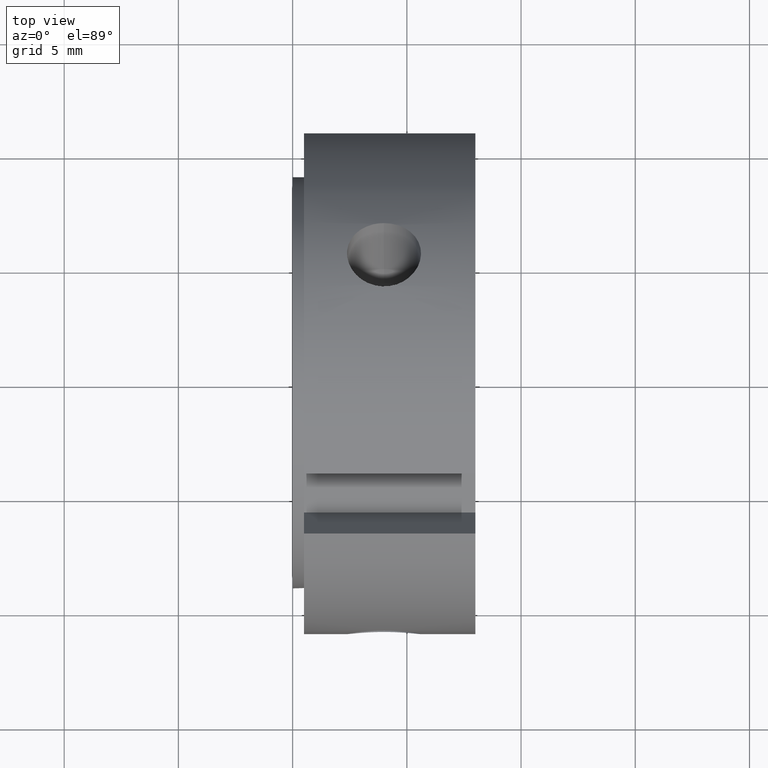
[diagram: clean part render]
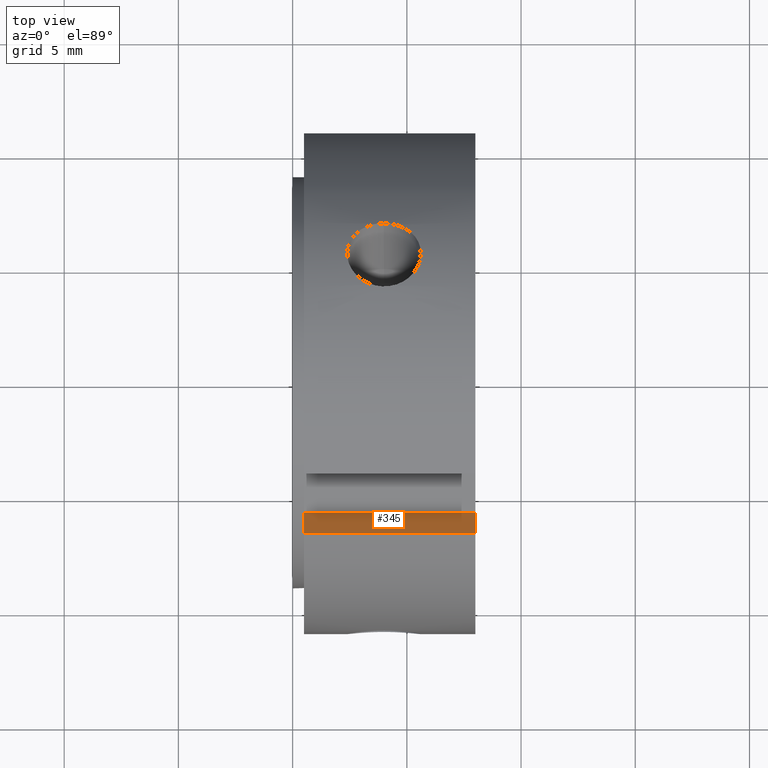
[diagram: same view with one face highlighted and labeled with its STEP entity id]
A machine part, top view. The second image highlights one B-rep face of the part: STEP entity #345.
In plain terms, the highlighted planar face has unit normal (0, -0.866, -0.5).
Its self-contained STEP definition (entity closure, byte-faithful):
#306=CARTESIAN_POINT('',(7.999999999999996,-6.799038105676656,8.776279441628827));
#307=DIRECTION('',(0.0,-0.866025403784439,-0.500000000000000));
#308=DIRECTION('',(1.0,0.0,0.0));
#309=AXIS2_PLACEMENT_3D('',#306,#307,#308);
#310=PLANE('',#309);
#311=CARTESIAN_POINT('',(0.499999999999998,-6.747661785102497,8.687293044088436));
#312=VERTEX_POINT('',#311);
#313=CARTESIAN_POINT('',(0.499999999999998,-5.799038105676656,7.044228634059949));
#314=VERTEX_POINT('',#313);
#315=CARTESIAN_POINT('',(0.499999999999998,-6.747661785102499,8.687293044088438));
#316=DIRECTION('',(0.0,0.500000000000000,-0.866025403784439));
#317=VECTOR('',#316,1.897247358851682);
#318=LINE('',#315,#317);
#319=EDGE_CURVE('',#312,#314,#318,.T.);
#320=ORIENTED_EDGE('',*,*,#319,.F.);
#321=CARTESIAN_POINT('',(7.999999999999996,-6.747661785102497,8.687293044088436));
#322=VERTEX_POINT('',#321);
#323=CARTESIAN_POINT('',(7.999999999999996,-6.747661785102497,8.687293044088435));
#324=DIRECTION('',(-1.0,0.0,0.0));
#325=VECTOR('',#324,7.499999999999998);
#326=LINE('',#323,#325);
#327=EDGE_CURVE('',#322,#312,#326,.T.);
#328=ORIENTED_EDGE('',*,*,#327,.F.);
#329=CARTESIAN_POINT('',(7.999999999999996,-5.799038105676656,7.044228634059949));
#330=VERTEX_POINT('',#329);
#331=CARTESIAN_POINT('',(7.999999999999996,-5.799038105676658,7.044228634059950));
#332=DIRECTION('',(0.0,-0.500000000000000,0.866025403784439));
#333=VECTOR('',#332,1.897247358851680);
#334=LINE('',#331,#333);
#335=EDGE_CURVE('',#330,#322,#334,.T.);
#336=ORIENTED_EDGE('',*,*,#335,.F.);
#337=CARTESIAN_POINT('',(7.999999999999996,-5.799038105676656,7.044228634059949));
#338=DIRECTION('',(-1.0,0.0,0.0));
#339=VECTOR('',#338,7.499999999999998);
#340=LINE('',#337,#339);
#341=EDGE_CURVE('',#330,#314,#340,.T.);
#342=ORIENTED_EDGE('',*,*,#341,.T.);
#343=EDGE_LOOP('',(#320,#328,#336,#342));
#344=FACE_OUTER_BOUND('',#343,.T.);
#345=ADVANCED_FACE('',(#344),#310,.F.);